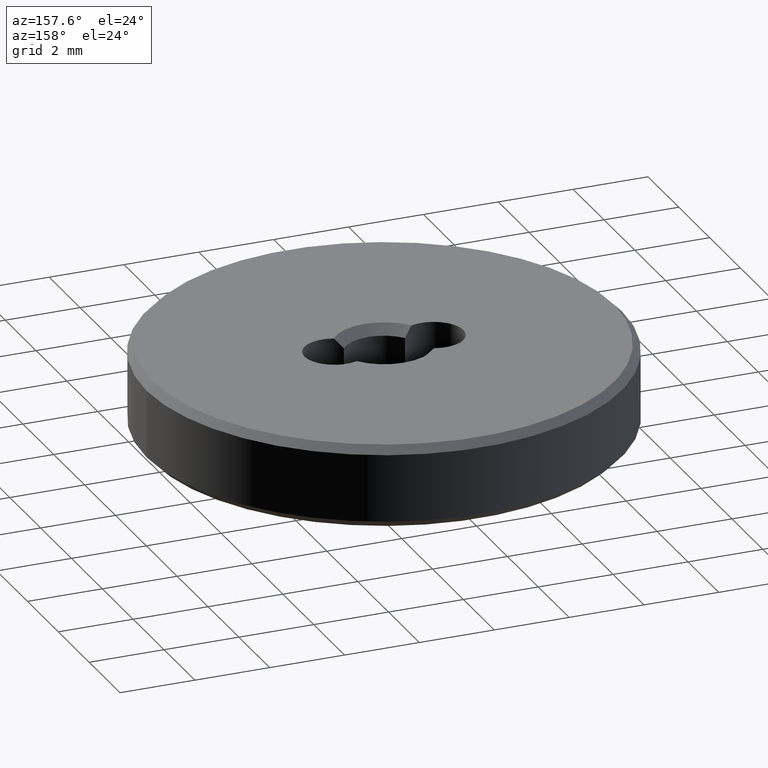
[diagram: clean part render]
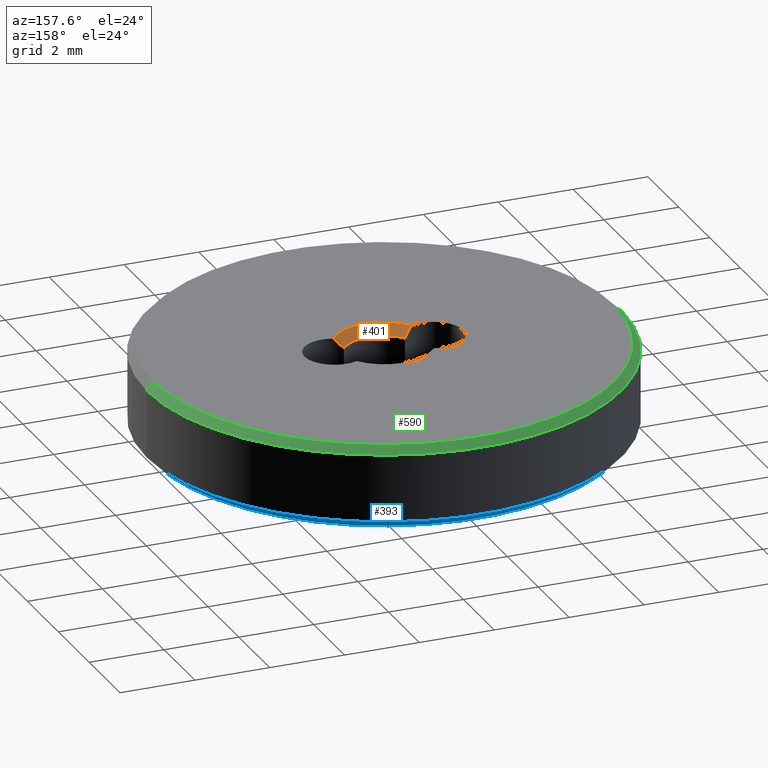
[diagram: same view with three faces highlighted in distinct colors, each labeled with its STEP entity id]
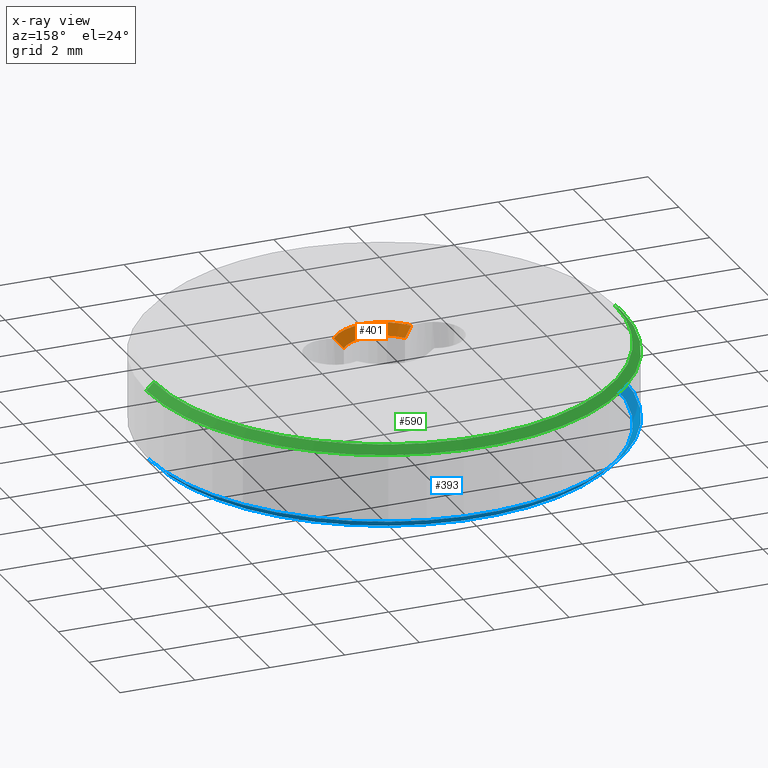
[diagram: x-ray of the same camera — body ghosted, the three highlighted faces saturated]
A machine part, auxiliary view with three faces highlighted in distinct colors.
The next image is the same camera in x-ray (body ghosted, the three faces saturated) — at least one of them is partly hidden behind the body in this view.
Their STEP definitions:

[orange] entity #401 — the highlighted conical surface has half-angle 45 deg.
#30 = DIRECTION ( 'NONE',  ( 1.000000000000000000, 0.000000000000000000, 0.000000000000000000 ) ) ;
#35 = ORIENTED_EDGE ( 'NONE', *, *, #363, .F. ) ;
#40 = DIRECTION ( 'NONE',  ( 0.000000000000000000, 0.000000000000000000, 1.000000000000000000 ) ) ;
#56 = CARTESIAN_POINT ( 'NONE',  ( 0.000000000000000000, 0.000000000000000000, 2.200000000000000178 ) ) ;
#63 = DIRECTION ( 'NONE',  ( -0.000000000000000000, -0.000000000000000000, -1.000000000000000000 ) ) ;
#84 = EDGE_CURVE ( 'NONE', #196, #439, #670, .T. ) ;
#88 = CARTESIAN_POINT ( 'NONE',  ( -1.034433962264152074, -0.7453666062512402934, 2.200000000000000178 ) ) ;
#113 = CIRCLE ( 'NONE', #509, 1.024999999999999911 ) ;
#139 = EDGE_LOOP ( 'NONE', ( #531, #35, #650, #626 ) ) ;
#187 = CARTESIAN_POINT ( 'NONE',  ( 0.8174528301886786474, -0.6183816543337288252, 1.949999999999998179 ) ) ;
#191 = CARTESIAN_POINT ( 'NONE',  ( 0.8824800047626255584, -0.6717538043393652680, 2.034059518351685636 ) ) ;
#195 = AXIS2_PLACEMENT_3D ( 'NONE', #208, #40, #477 ) ;
#196 = VERTEX_POINT ( 'NONE', #604 ) ;
#202 = CARTESIAN_POINT ( 'NONE',  ( 1.034433962264152074, -0.7453666062512400714, 2.200000000000000178 ) ) ;
#208 = CARTESIAN_POINT ( 'NONE',  ( 0.000000000000000000, 0.000000000000000000, 1.949999999999998179 ) ) ;
#213 = CARTESIAN_POINT ( 'NONE',  ( -0.8174528301886785364, -0.6183816543337290472, 1.949999999999997957 ) ) ;
#221 = CARTESIAN_POINT ( 'NONE',  ( 0.8174528301886786474, -0.6183816543337288252, 1.949999999999998179 ) ) ;
#245 = CARTESIAN_POINT ( 'NONE',  ( 1.034433962264152074, -0.7453666062512400714, 2.200000000000000178 ) ) ;
#255 = B_SPLINE_CURVE_WITH_KNOTS ( 'NONE', 3,
 ( #187, #191, #460, #245 ),
 .UNSPECIFIED., .F., .F.,
 ( 4, 4 ),
 ( 2.811878998743662709E-07, 0.0003548315929046659610 ),
 .UNSPECIFIED. ) ;
#263 = FACE_OUTER_BOUND ( 'NONE', #139, .T. ) ;
#303 = CARTESIAN_POINT ( 'NONE',  ( 0.000000000000000000, 0.000000000000000000, 1.949999999999998179 ) ) ;
#313 = CARTESIAN_POINT ( 'NONE',  ( -0.9548159232536620467, -0.7143291302849794633, 2.117259684949883258 ) ) ;
#318 = EDGE_CURVE ( 'NONE', #687, #432, #255, .T. ) ;
#338 = DIRECTION ( 'NONE',  ( 1.000000000000000000, 0.000000000000000000, 0.000000000000000000 ) ) ;
#363 = EDGE_CURVE ( 'NONE', #439, #687, #113, .T. ) ;
#401 = ADVANCED_FACE ( 'NONE', ( #263 ), #676, .F. ) ;
#432 = VERTEX_POINT ( 'NONE', #202 ) ;
#435 = CIRCLE ( 'NONE', #458, 1.275000000000001910 ) ;
#439 = VERTEX_POINT ( 'NONE', #533 ) ;
#458 = AXIS2_PLACEMENT_3D ( 'NONE', #56, #63, #338 ) ;
#460 = CARTESIAN_POINT ( 'NONE',  ( 0.9548159232536517216, -0.7143291302849753555, 2.117259684949872600 ) ) ;
#477 = DIRECTION ( 'NONE',  ( 1.000000000000000000, 0.000000000000000000, 0.000000000000000000 ) ) ;
#509 = AXIS2_PLACEMENT_3D ( 'NONE', #303, #515, #30 ) ;
#515 = DIRECTION ( 'NONE',  ( 0.000000000000000000, 0.000000000000000000, 1.000000000000000000 ) ) ;
#523 = CARTESIAN_POINT ( 'NONE',  ( -0.8824800047626335520, -0.6717538043393722624, 2.034059518351696738 ) ) ;
#531 = ORIENTED_EDGE ( 'NONE', *, *, #318, .F. ) ;
#533 = CARTESIAN_POINT ( 'NONE',  ( -0.8174528301886785364, -0.6183816543337290472, 1.949999999999997957 ) ) ;
#604 = CARTESIAN_POINT ( 'NONE',  ( -1.034433962264152074, -0.7453666062512402934, 2.200000000000000178 ) ) ;
#626 = ORIENTED_EDGE ( 'NONE', *, *, #635, .F. ) ;
#635 = EDGE_CURVE ( 'NONE', #432, #196, #435, .T. ) ;
#650 = ORIENTED_EDGE ( 'NONE', *, *, #84, .F. ) ;
#670 = B_SPLINE_CURVE_WITH_KNOTS ( 'NONE', 3,
 ( #88, #313, #523, #213 ),
 .UNSPECIFIED., .F., .F.,
 ( 4, 4 ),
 ( 2.856743310695093010E-07, 0.0003548360793358613149 ),
 .UNSPECIFIED. ) ;
#676 = CONICAL_SURFACE ( 'NONE', #195, 1.024999999999999911, 0.7853981633974482790 ) ;
#687 = VERTEX_POINT ( 'NONE', #221 ) ;

[blue] entity #393 — the highlighted conical surface has half-angle 45 deg.
#6 = DIRECTION ( 'NONE',  ( -0.000000000000000000, -0.000000000000000000, 1.000000000000000000 ) ) ;
#8 = DIRECTION ( 'NONE',  ( 1.000000000000000000, 0.000000000000000000, 0.000000000000000000 ) ) ;
#28 = DIRECTION ( 'NONE',  ( -0.7071067811865490160, 8.659560562354953812E-17, 0.7071067811865460184 ) ) ;
#29 = VERTEX_POINT ( 'NONE', #142 ) ;
#48 = FACE_OUTER_BOUND ( 'NONE', #658, .T. ) ;
#57 = CARTESIAN_POINT ( 'NONE',  ( 6.349999999999999645, 0.000000000000000000, 0.1999999999999987899 ) ) ;
#64 = LINE ( 'NONE', #57, #298 ) ;
#79 = ORIENTED_EDGE ( 'NONE', *, *, #657, .F. ) ;
#101 = AXIS2_PLACEMENT_3D ( 'NONE', #524, #374, #701 ) ;
#102 = AXIS2_PLACEMENT_3D ( 'NONE', #491, #6, #8 ) ;
#115 = DIRECTION ( 'NONE',  ( -0.000000000000000000, -0.000000000000000000, -1.000000000000000000 ) ) ;
#142 = CARTESIAN_POINT ( 'NONE',  ( -6.150000000000000355, 7.654042494670957606E-16, 0.000000000000000000 ) ) ;
#147 = CIRCLE ( 'NONE', #595, 6.150000000000000355 ) ;
#155 = VERTEX_POINT ( 'NONE', #277 ) ;
#183 = ORIENTED_EDGE ( 'NONE', *, *, #190, .F. ) ;
#190 = EDGE_CURVE ( 'NONE', #220, #378, #64, .T. ) ;
#220 = VERTEX_POINT ( 'NONE', #232 ) ;
#231 = DIRECTION ( 'NONE',  ( 1.000000000000000000, 0.000000000000000000, 0.000000000000000000 ) ) ;
#232 = CARTESIAN_POINT ( 'NONE',  ( 6.150000000000000355, 0.000000000000000000, 0.000000000000000000 ) ) ;
#261 = EDGE_CURVE ( 'NONE', #29, #155, #511, .T. ) ;
#277 = CARTESIAN_POINT ( 'NONE',  ( -6.349999999999999645, 0.000000000000000000, 0.1999999999999987899 ) ) ;
#289 = ORIENTED_EDGE ( 'NONE', *, *, #697, .F. ) ;
#298 = VECTOR ( 'NONE', #389, 1000.000000000000114 ) ;
#374 = DIRECTION ( 'NONE',  ( -0.000000000000000000, -0.000000000000000000, 1.000000000000000000 ) ) ;
#378 = VERTEX_POINT ( 'NONE', #527 ) ;
#383 = CIRCLE ( 'NONE', #102, 6.349999999999999645 ) ;
#389 = DIRECTION ( 'NONE',  ( 0.7071067811865490160, 0.000000000000000000, 0.7071067811865460184 ) ) ;
#393 = ADVANCED_FACE ( 'NONE', ( #48 ), #488, .T. ) ;
#397 = ORIENTED_EDGE ( 'NONE', *, *, #261, .T. ) ;
#488 = CONICAL_SURFACE ( 'NONE', #101, 6.349999999999999645, 0.7853981633974504994 ) ;
#491 = CARTESIAN_POINT ( 'NONE',  ( 0.000000000000000000, 0.000000000000000000, 0.1999999999999987899 ) ) ;
#501 = CARTESIAN_POINT ( 'NONE',  ( -6.349999999999999645, 7.776507174585692163E-16, 0.1999999999999987899 ) ) ;
#511 = LINE ( 'NONE', #501, #579 ) ;
#524 = CARTESIAN_POINT ( 'NONE',  ( 0.000000000000000000, 0.000000000000000000, 0.1999999999999987899 ) ) ;
#527 = CARTESIAN_POINT ( 'NONE',  ( 6.349999999999999645, 7.776507174585692163E-16, 0.1999999999999987899 ) ) ;
#579 = VECTOR ( 'NONE', #28, 1000.000000000000114 ) ;
#595 = AXIS2_PLACEMENT_3D ( 'NONE', #606, #115, #231 ) ;
#606 = CARTESIAN_POINT ( 'NONE',  ( 0.000000000000000000, 0.000000000000000000, 0.000000000000000000 ) ) ;
#657 = EDGE_CURVE ( 'NONE', #29, #220, #147, .T. ) ;
#658 = EDGE_LOOP ( 'NONE', ( #79, #397, #289, #183 ) ) ;
#697 = EDGE_CURVE ( 'NONE', #378, #155, #383, .T. ) ;
#701 = DIRECTION ( 'NONE',  ( 1.000000000000000000, 0.000000000000000000, 0.000000000000000000 ) ) ;

[green] entity #590 — the highlighted conical surface has half-angle 45 deg.
#24 = CIRCLE ( 'NONE', #254, 6.349999999999999645 ) ;
#47 = AXIS2_PLACEMENT_3D ( 'NONE', #104, #440, #111 ) ;
#52 = DIRECTION ( 'NONE',  ( 0.000000000000000000, 0.000000000000000000, -1.000000000000000000 ) ) ;
#70 = CONICAL_SURFACE ( 'NONE', #580, 6.149999999999999467, 0.7853981633974503884 ) ;
#86 = ORIENTED_EDGE ( 'NONE', *, *, #241, .T. ) ;
#104 = CARTESIAN_POINT ( 'NONE',  ( 0.000000000000000000, 0.000000000000000000, 2.200000000000000178 ) ) ;
#111 = DIRECTION ( 'NONE',  ( 1.000000000000000000, 0.000000000000000000, 0.000000000000000000 ) ) ;
#135 = CARTESIAN_POINT ( 'NONE',  ( -6.149999999999999467, 0.000000000000000000, 2.200000000000000178 ) ) ;
#144 = CARTESIAN_POINT ( 'NONE',  ( -6.149999999999999467, 0.000000000000000000, 2.200000000000000178 ) ) ;
#150 = VERTEX_POINT ( 'NONE', #343 ) ;
#225 = CARTESIAN_POINT ( 'NONE',  ( -6.349999999999999645, 0.000000000000000000, 2.000000000000000444 ) ) ;
#241 = EDGE_CURVE ( 'NONE', #292, #150, #291, .T. ) ;
#253 = ORIENTED_EDGE ( 'NONE', *, *, #493, .F. ) ;
#254 = AXIS2_PLACEMENT_3D ( 'NONE', #407, #572, #355 ) ;
#267 = VECTOR ( 'NONE', #348, 1000.000000000000000 ) ;
#272 = DIRECTION ( 'NONE',  ( -0.7071067811865490160, 0.000000000000000000, -0.7071067811865459074 ) ) ;
#283 = DIRECTION ( 'NONE',  ( -1.000000000000000000, 0.000000000000000000, 0.000000000000000000 ) ) ;
#291 = LINE ( 'NONE', #566, #267 ) ;
#292 = VERTEX_POINT ( 'NONE', #628 ) ;
#311 = CIRCLE ( 'NONE', #47, 6.149999999999999467 ) ;
#328 = VERTEX_POINT ( 'NONE', #135 ) ;
#329 = EDGE_CURVE ( 'NONE', #598, #150, #24, .T. ) ;
#343 = CARTESIAN_POINT ( 'NONE',  ( 6.349999999999999645, 7.776507174585692163E-16, 2.000000000000000444 ) ) ;
#348 = DIRECTION ( 'NONE',  ( 0.7071067811865490160, 8.659560562354950115E-17, -0.7071067811865459074 ) ) ;
#353 = ORIENTED_EDGE ( 'NONE', *, *, #651, .F. ) ;
#355 = DIRECTION ( 'NONE',  ( 1.000000000000000000, 0.000000000000000000, 0.000000000000000000 ) ) ;
#364 = LINE ( 'NONE', #144, #570 ) ;
#407 = CARTESIAN_POINT ( 'NONE',  ( 0.000000000000000000, 0.000000000000000000, 2.000000000000000444 ) ) ;
#440 = DIRECTION ( 'NONE',  ( 0.000000000000000000, 0.000000000000000000, 1.000000000000000000 ) ) ;
#493 = EDGE_CURVE ( 'NONE', #328, #598, #364, .T. ) ;
#552 = ORIENTED_EDGE ( 'NONE', *, *, #329, .F. ) ;
#566 = CARTESIAN_POINT ( 'NONE',  ( 6.149999999999999467, 7.531577814756219106E-16, 2.200000000000000178 ) ) ;
#570 = VECTOR ( 'NONE', #272, 1000.000000000000000 ) ;
#572 = DIRECTION ( 'NONE',  ( 0.000000000000000000, 0.000000000000000000, -1.000000000000000000 ) ) ;
#580 = AXIS2_PLACEMENT_3D ( 'NONE', #663, #52, #283 ) ;
#590 = ADVANCED_FACE ( 'NONE', ( #661 ), #70, .T. ) ;
#598 = VERTEX_POINT ( 'NONE', #225 ) ;
#628 = CARTESIAN_POINT ( 'NONE',  ( 6.149999999999999467, 7.654042494670954648E-16, 2.200000000000000178 ) ) ;
#651 = EDGE_CURVE ( 'NONE', #292, #328, #311, .T. ) ;
#661 = FACE_OUTER_BOUND ( 'NONE', #685, .T. ) ;
#663 = CARTESIAN_POINT ( 'NONE',  ( 0.000000000000000000, 0.000000000000000000, 2.200000000000000178 ) ) ;
#685 = EDGE_LOOP ( 'NONE', ( #353, #86, #552, #253 ) ) ;